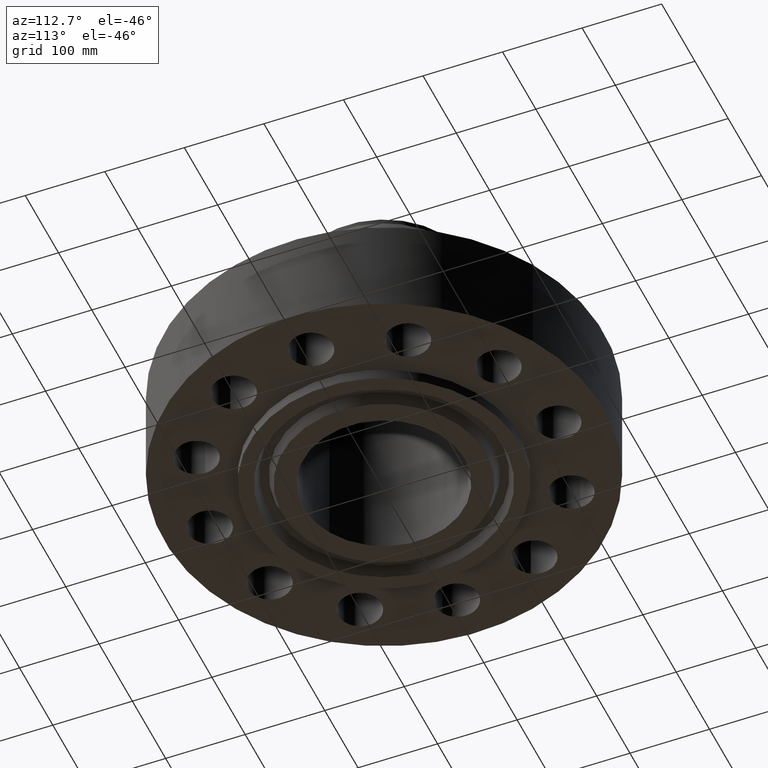
[diagram: clean part render]
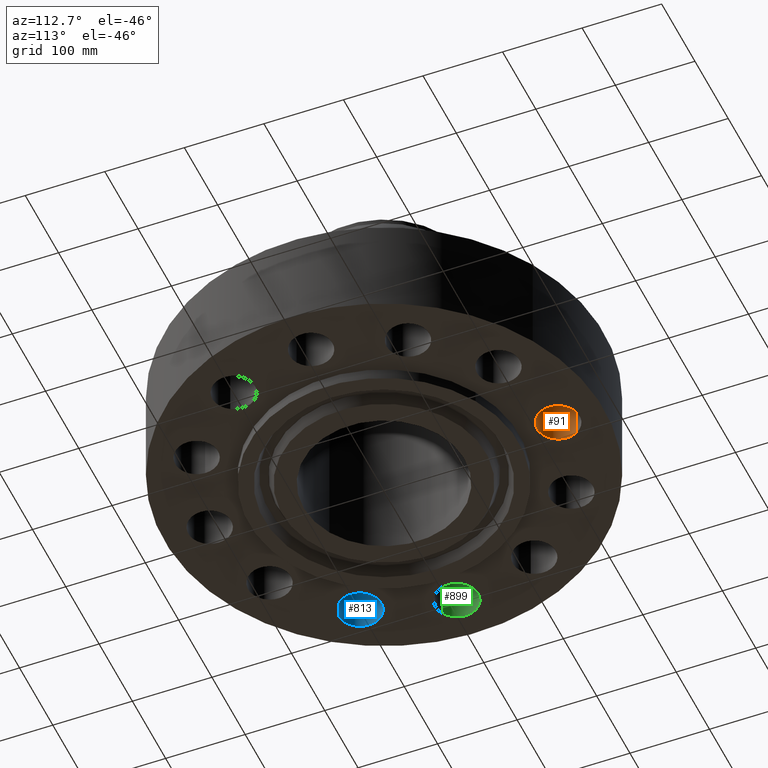
[diagram: same view with three faces highlighted in distinct colors, each labeled with its STEP entity id]
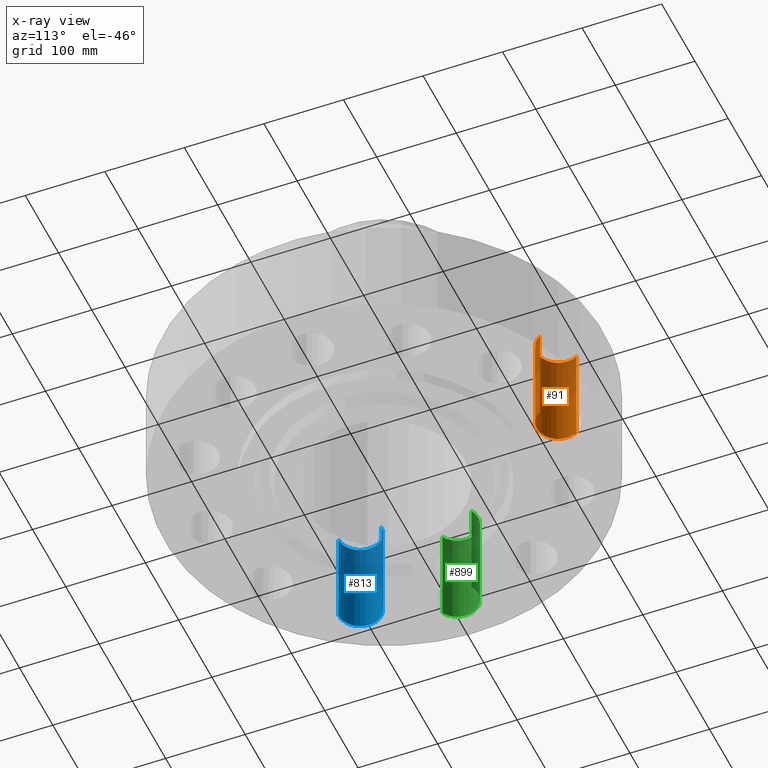
[diagram: x-ray of the same camera — body ghosted, the three highlighted faces saturated]
A machine part, auxiliary view with three faces highlighted in distinct colors.
The next image is the same camera in x-ray (body ghosted, the three faces saturated) — at least one of them is partly hidden behind the body in this view.
Their STEP definitions:

[orange] entity #91 — the highlighted cylindrical surface (edge-blend (fillet) strip) has radius 26.924 mm, axis along (0, -0, -1).
#38=AXIS2_PLACEMENT_3D('Cylinder Axis2P3D',#35,#36,#37) ;
#77=AXIS2_PLACEMENT_3D('Circle Axis2P3D',#75,#76,$) ;
#82=AXIS2_PLACEMENT_3D('Circle Axis2P3D',#80,#81,$) ;
#35=CARTESIAN_POINT('Axis2P3D Location',(0.,8.62500000003,4.99606299215)) ;
#40=CARTESIAN_POINT('Line Origine',(-0.930237515608,9.13319107096,2.50000000001)) ;
#44=CARTESIAN_POINT('Vertex',(-0.930237515608,9.13319107096,0.)) ;
#46=CARTESIAN_POINT('Vertex',(-0.930237515608,9.13319107096,5.00000000002)) ;
#53=CARTESIAN_POINT('Vertex',(0.930237515608,8.11680892911,0.)) ;
#56=CARTESIAN_POINT('Line Origine',(0.930237515608,8.11680892911,2.50000000001)) ;
#60=CARTESIAN_POINT('Vertex',(0.930237515608,8.11680892911,5.00000000002)) ;
#75=CARTESIAN_POINT('Axis2P3D Location',(0.,8.62500000003,0.)) ;
#80=CARTESIAN_POINT('Axis2P3D Location',(0.,8.62500000003,5.00000000002)) ;
#36=DIRECTION('Axis2P3D Direction',(0.,-0.,-0.0393700787402)) ;
#37=DIRECTION('Axis2P3D XDirection',(0.0345504945626,-0.0188750212049,0.)) ;
#41=DIRECTION('Vector Direction',(0.,0.,-0.0393700787402)) ;
#57=DIRECTION('Vector Direction',(0.,0.,-0.0393700787402)) ;
#76=DIRECTION('Axis2P3D Direction',(0.,-0.,-0.0393700787402)) ;
#81=DIRECTION('Axis2P3D Direction',(0.,-0.,-0.0393700787402)) ;
#42=VECTOR('Line Direction',#41,0.0393700787402) ;
#58=VECTOR('Line Direction',#57,0.0393700787402) ;
#86=ORIENTED_EDGE('',*,*,#62,.F.) ;
#87=ORIENTED_EDGE('',*,*,#79,.T.) ;
#88=ORIENTED_EDGE('',*,*,#48,.T.) ;
#89=ORIENTED_EDGE('',*,*,#84,.F.) ;
#91=ADVANCED_FACE('PartBody',(#90),#39,.F.) ;
#78=CIRCLE('generated circle',#77,1.06) ;
#83=CIRCLE('generated circle',#82,1.06) ;
#39=CYLINDRICAL_SURFACE('generated cylinder',#38,1.06) ;
#48=EDGE_CURVE('',#45,#47,#43,.F.) ;
#62=EDGE_CURVE('',#54,#61,#59,.F.) ;
#79=EDGE_CURVE('',#54,#45,#78,.T.) ;
#84=EDGE_CURVE('',#61,#47,#83,.T.) ;
#85=EDGE_LOOP('',(#86,#87,#88,#89)) ;
#90=FACE_OUTER_BOUND('',#85,.T.) ;
#43=LINE('Line',#40,#42) ;
#59=LINE('Line',#56,#58) ;
#45=VERTEX_POINT('',#44) ;
#47=VERTEX_POINT('',#46) ;
#54=VERTEX_POINT('',#53) ;
#61=VERTEX_POINT('',#60) ;

[blue] entity #813 — the highlighted cylindrical surface (edge-blend (fillet) strip) has radius 26.924 mm, axis along (0, 0, -1).
#626=AXIS2_PLACEMENT_3D('Circle Axis2P3D',#624,#625,$) ;
#786=AXIS2_PLACEMENT_3D('Cylinder Axis2P3D',#783,#784,#785) ;
#804=AXIS2_PLACEMENT_3D('Circle Axis2P3D',#802,#803,$) ;
#624=CARTESIAN_POINT('Axis2P3D Location',(-7.46946910767,-4.31250000002,0.)) ;
#628=CARTESIAN_POINT('Vertex',(-7.44445672726,-5.37220485555,0.)) ;
#630=CARTESIAN_POINT('Vertex',(-7.49448148808,-3.25279514449,0.)) ;
#783=CARTESIAN_POINT('Axis2P3D Location',(-7.46946910767,-4.31250000002,4.99606299215)) ;
#788=CARTESIAN_POINT('Line Origine',(-7.44445672726,-5.37220485555,2.50000000001)) ;
#792=CARTESIAN_POINT('Vertex',(-7.44445672726,-5.37220485555,5.00000000002)) ;
#795=CARTESIAN_POINT('Line Origine',(-7.49448148808,-3.25279514449,2.50000000001)) ;
#799=CARTESIAN_POINT('Vertex',(-7.49448148808,-3.25279514449,5.00000000002)) ;
#802=CARTESIAN_POINT('Axis2P3D Location',(-7.46946910767,-4.31250000002,5.00000000002)) ;
#625=DIRECTION('Axis2P3D Direction',(0.,0.,-0.0393700787402)) ;
#784=DIRECTION('Axis2P3D Direction',(0.,0.,-0.0393700787402)) ;
#785=DIRECTION('Axis2P3D XDirection',(-0.000928999420902,0.039359116607,0.)) ;
#789=DIRECTION('Vector Direction',(0.,0.,-0.0393700787402)) ;
#796=DIRECTION('Vector Direction',(0.,0.,-0.0393700787402)) ;
#803=DIRECTION('Axis2P3D Direction',(0.,0.,-0.0393700787402)) ;
#790=VECTOR('Line Direction',#789,0.0393700787402) ;
#797=VECTOR('Line Direction',#796,0.0393700787402) ;
#808=ORIENTED_EDGE('',*,*,#794,.F.) ;
#809=ORIENTED_EDGE('',*,*,#632,.T.) ;
#810=ORIENTED_EDGE('',*,*,#801,.T.) ;
#811=ORIENTED_EDGE('',*,*,#806,.F.) ;
#813=ADVANCED_FACE('PartBody',(#812),#787,.F.) ;
#627=CIRCLE('generated circle',#626,1.06) ;
#805=CIRCLE('generated circle',#804,1.06) ;
#787=CYLINDRICAL_SURFACE('generated cylinder',#786,1.06) ;
#632=EDGE_CURVE('',#629,#631,#627,.T.) ;
#794=EDGE_CURVE('',#629,#793,#791,.F.) ;
#801=EDGE_CURVE('',#631,#800,#798,.F.) ;
#806=EDGE_CURVE('',#793,#800,#805,.T.) ;
#807=EDGE_LOOP('',(#808,#809,#810,#811)) ;
#812=FACE_OUTER_BOUND('',#807,.T.) ;
#791=LINE('Line',#788,#790) ;
#798=LINE('Line',#795,#797) ;
#629=VERTEX_POINT('',#628) ;
#631=VERTEX_POINT('',#630) ;
#793=VERTEX_POINT('',#792) ;
#800=VERTEX_POINT('',#799) ;

[green] entity #899 — the highlighted cylindrical surface (edge-blend (fillet) strip) has radius 26.924 mm, axis along (0, 0, -1).
#644=AXIS2_PLACEMENT_3D('Circle Axis2P3D',#642,#643,$) ;
#872=AXIS2_PLACEMENT_3D('Cylinder Axis2P3D',#869,#870,#871) ;
#890=AXIS2_PLACEMENT_3D('Circle Axis2P3D',#888,#889,$) ;
#642=CARTESIAN_POINT('Axis2P3D Location',(-8.62500000003,-2.23792987641E-015,0.)) ;
#646=CARTESIAN_POINT('Vertex',(-9.13319107096,-0.930237515608,0.)) ;
#648=CARTESIAN_POINT('Vertex',(-8.11680892911,0.930237515608,0.)) ;
#869=CARTESIAN_POINT('Axis2P3D Location',(-8.62500000003,-1.5843867964E-015,4.99606299215)) ;
#874=CARTESIAN_POINT('Line Origine',(-9.13319107096,-0.930237515608,2.50000000001)) ;
#878=CARTESIAN_POINT('Vertex',(-9.13319107096,-0.930237515608,5.00000000002)) ;
#881=CARTESIAN_POINT('Line Origine',(-8.11680892911,0.930237515608,2.50000000001)) ;
#885=CARTESIAN_POINT('Vertex',(-8.11680892911,0.930237515608,5.00000000002)) ;
#888=CARTESIAN_POINT('Axis2P3D Location',(-8.62500000003,-1.5843867964E-015,5.00000000002)) ;
#643=DIRECTION('Axis2P3D Direction',(0.,0.,-0.0393700787402)) ;
#870=DIRECTION('Axis2P3D Direction',(0.,0.,-0.0393700787402)) ;
#871=DIRECTION('Axis2P3D XDirection',(0.0188750212049,0.0345504945626,0.)) ;
#875=DIRECTION('Vector Direction',(0.,0.,-0.0393700787402)) ;
#882=DIRECTION('Vector Direction',(0.,0.,-0.0393700787402)) ;
#889=DIRECTION('Axis2P3D Direction',(0.,0.,-0.0393700787402)) ;
#876=VECTOR('Line Direction',#875,0.0393700787402) ;
#883=VECTOR('Line Direction',#882,0.0393700787402) ;
#894=ORIENTED_EDGE('',*,*,#880,.F.) ;
#895=ORIENTED_EDGE('',*,*,#650,.T.) ;
#896=ORIENTED_EDGE('',*,*,#887,.T.) ;
#897=ORIENTED_EDGE('',*,*,#892,.F.) ;
#899=ADVANCED_FACE('PartBody',(#898),#873,.F.) ;
#645=CIRCLE('generated circle',#644,1.06) ;
#891=CIRCLE('generated circle',#890,1.06) ;
#873=CYLINDRICAL_SURFACE('generated cylinder',#872,1.06) ;
#650=EDGE_CURVE('',#647,#649,#645,.T.) ;
#880=EDGE_CURVE('',#647,#879,#877,.F.) ;
#887=EDGE_CURVE('',#649,#886,#884,.F.) ;
#892=EDGE_CURVE('',#879,#886,#891,.T.) ;
#893=EDGE_LOOP('',(#894,#895,#896,#897)) ;
#898=FACE_OUTER_BOUND('',#893,.T.) ;
#877=LINE('Line',#874,#876) ;
#884=LINE('Line',#881,#883) ;
#647=VERTEX_POINT('',#646) ;
#649=VERTEX_POINT('',#648) ;
#879=VERTEX_POINT('',#878) ;
#886=VERTEX_POINT('',#885) ;